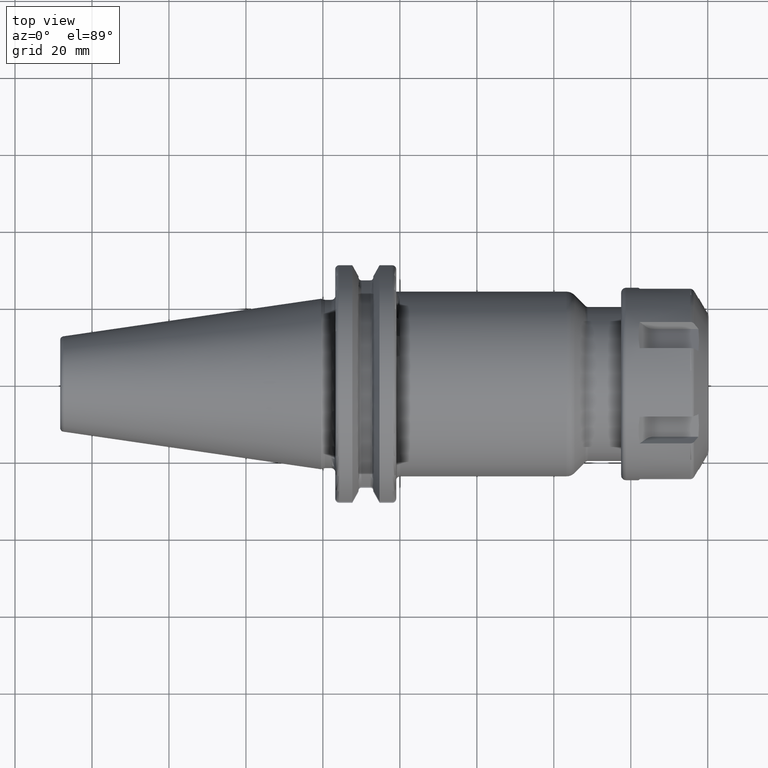
[diagram: clean part render]
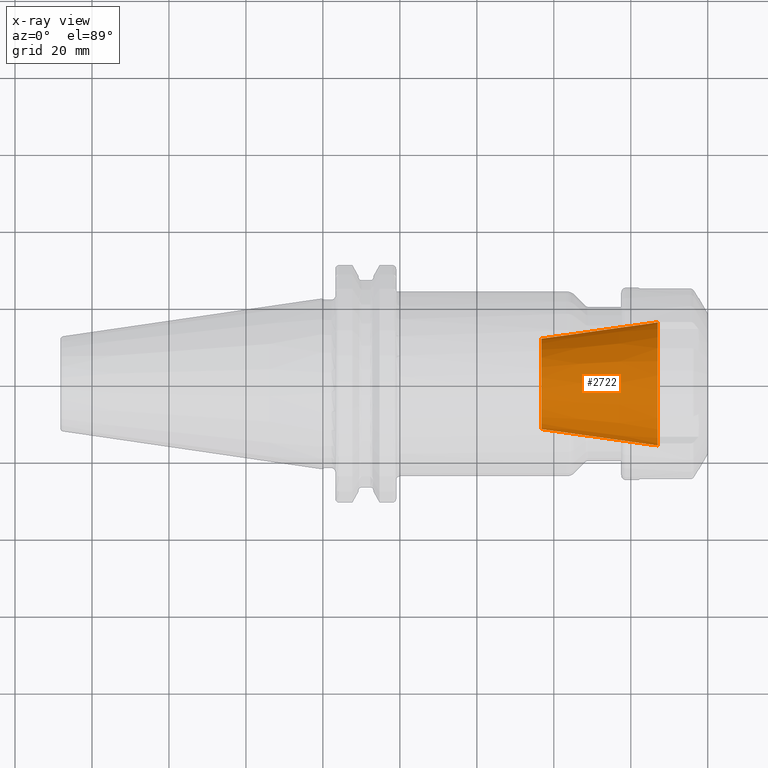
[diagram: x-ray — body ghosted, one internal face saturated and labeled with its STEP entity id]
A machine part, top view, then the same camera in x-ray: the body is ghosted and one INTERNAL B-rep face — a face not visible from any outside direction — is saturated and labeled: STEP entity #2722.
In plain terms, the highlighted conical surface has half-angle 8 deg.
Its self-contained STEP definition (entity closure, byte-faithful):
#1059=CARTESIAN_POINT('',(8.7E1,0.E0,0.E0));
#1060=DIRECTION('',(1.E0,0.E0,0.E0));
#1061=DIRECTION('',(0.E0,1.E0,0.E0));
#1062=AXIS2_PLACEMENT_3D('',#1059,#1060,#1061);
#1069=DIRECTION('',(-9.902680687416E-1,1.391731009601E-1,0.E0));
#1070=VECTOR('',#1069,3.053751027089E1);
#1071=CARTESIAN_POINT('',(8.7E1,-1.6E1,0.E0));
#1072=LINE('',#1071,#1070);
#1073=DIRECTION('',(-9.902680687416E-1,-1.391731009601E-1,0.E0));
#1074=VECTOR('',#1073,3.053751027089E1);
#1075=CARTESIAN_POINT('',(8.7E1,1.6E1,0.E0));
#1076=LINE('',#1075,#1074);
#1090=CARTESIAN_POINT('',(5.675967867987E1,0.E0,0.E0));
#1091=DIRECTION('',(1.E0,0.E0,0.E0));
#1092=DIRECTION('',(0.E0,1.E0,0.E0));
#1093=AXIS2_PLACEMENT_3D('',#1090,#1091,#1092);
#1577=CARTESIAN_POINT('',(5.675967867987E1,1.175E1,0.E0));
#1579=VERTEX_POINT('',#1577);
#1581=CARTESIAN_POINT('',(5.675967867987E1,-1.175E1,0.E0));
#1583=VERTEX_POINT('',#1581);
#1585=CARTESIAN_POINT('',(8.7E1,1.6E1,0.E0));
#1586=CARTESIAN_POINT('',(8.7E1,-1.6E1,0.E0));
#1587=VERTEX_POINT('',#1585);
#1588=VERTEX_POINT('',#1586);
#2708=CARTESIAN_POINT('',(7.187983933993E1,0.E0,0.E0));
#2709=DIRECTION('',(1.E0,0.E0,0.E0));
#2710=DIRECTION('',(0.E0,-1.E0,0.E0));
#2711=AXIS2_PLACEMENT_3D('',#2708,#2709,#2710);
#2712=CONICAL_SURFACE('',#2711,1.3875E1,8.E0);
#2713=ORIENTED_EDGE('',*,*,#2701,.F.);
#2715=ORIENTED_EDGE('',*,*,#2714,.T.);
#2717=ORIENTED_EDGE('',*,*,#2716,.T.);
#2719=ORIENTED_EDGE('',*,*,#2718,.F.);
#2720=EDGE_LOOP('',(#2713,#2715,#2717,#2719));
#2721=FACE_OUTER_BOUND('',#2720,.F.);
#2722=ADVANCED_FACE('',(#2721),#2712,.F.);
#1063=CIRCLE('',#1062,1.6E1);
#1094=CIRCLE('',#1093,1.175E1);
#2701=EDGE_CURVE('',#1587,#1588,#1063,.T.);
#2714=EDGE_CURVE('',#1587,#1579,#1076,.T.);
#2716=EDGE_CURVE('',#1579,#1583,#1094,.T.);
#2718=EDGE_CURVE('',#1588,#1583,#1072,.T.);